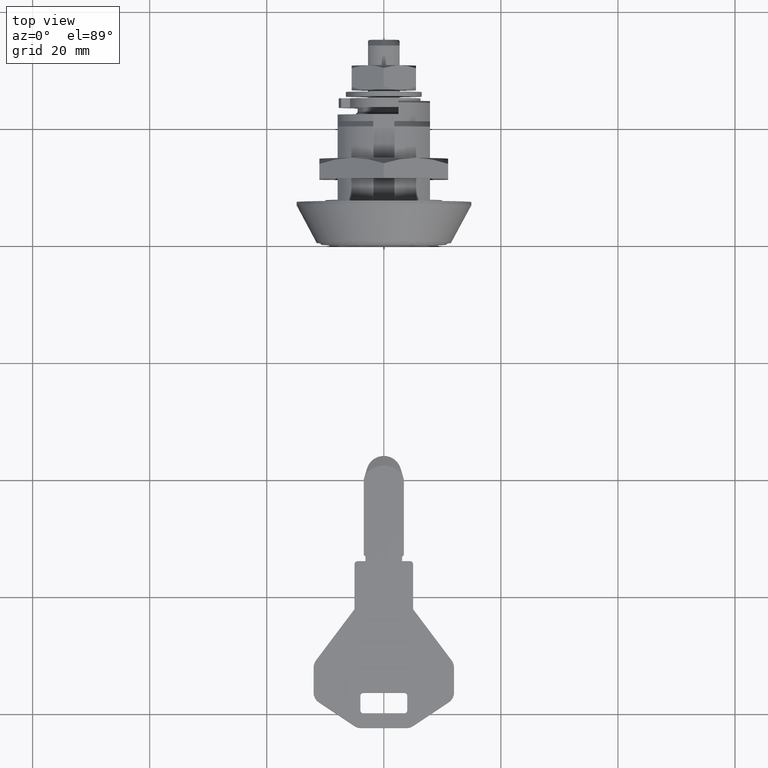
[diagram: clean part render]
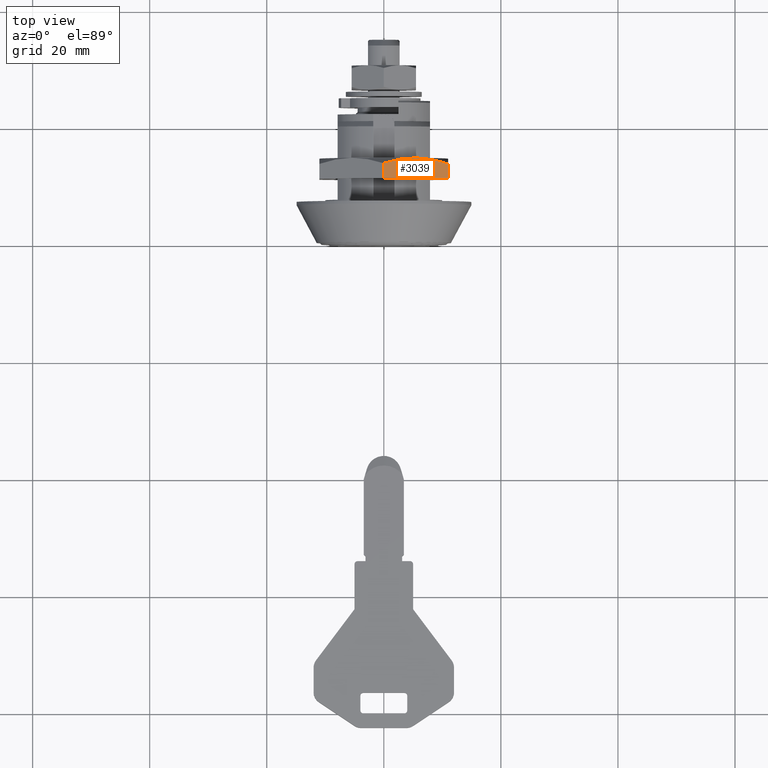
[diagram: same view with one face highlighted and labeled with its STEP entity id]
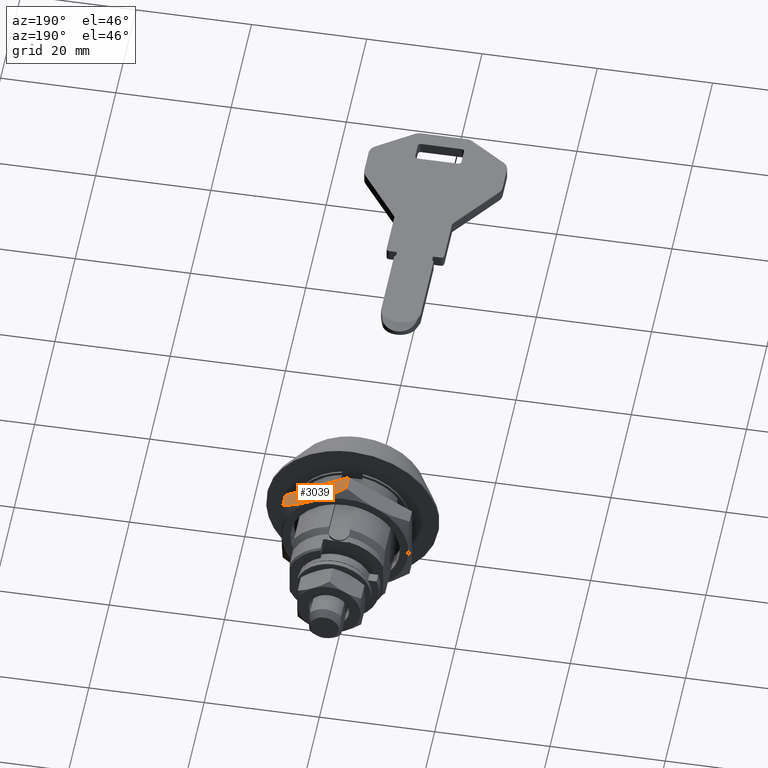
[diagram: same view with one face highlighted and labeled with its STEP entity id]
A machine part, top view. The second image highlights one B-rep face of the part: STEP entity #3039.
A second angle (auxiliary view) of the same face is appended — the face is thin or edge-on in the first view.
In plain terms, the highlighted face is a freeform B-spline surface patch.
Its self-contained STEP definition (entity closure, byte-faithful):
#2836=CARTESIAN_POINT('',(13.714456260781221,-11.0,6.350852499727981));
#2837=VERTEX_POINT('',#2836);
#2854=CARTESIAN_POINT('',(14.696936499999961,-5.499999833928370,9.526279095609480));
#2855=VERTEX_POINT('',#2854);
#2869=CARTESIAN_POINT('',(14.696936499999961,-5.499999833928370,9.526279095609480));
#2870=CARTESIAN_POINT('',(14.696935433367130,-5.730331061023577,9.393297298828506));
#2871=CARTESIAN_POINT('',(14.691325657526770,-5.961779285706518,9.259670603185572));
#2872=CARTESIAN_POINT('',(14.668892062982660,-6.426112151151324,8.991587896684772));
#2873=CARTESIAN_POINT('',(14.651925091422831,-6.659218344848695,8.857003972179175));
#2874=CARTESIAN_POINT('',(14.584763235977110,-7.356204282073581,8.454598951235315));
#2875=CARTESIAN_POINT('',(14.518269394289421,-7.817745928162263,8.188127755991017));
#2876=CARTESIAN_POINT('',(14.261506074273420,-9.194153750972216,7.393458324107734));
#2877=CARTESIAN_POINT('',(14.014177999452899,-10.100834830220130,6.869985755727289));
#2878=CARTESIAN_POINT('',(13.714456260781221,-11.0,6.350852499727981));
#2879=B_SPLINE_CURVE_WITH_KNOTS('',3,(#2869,#2870,#2871,#2872,#2873,#2874,#2875,#2876,#2877,#2878),.UNSPECIFIED.,.F.,.U.,(4,2,2,2,4),(0.500936479368760,0.562500000000000,0.625000000000000,0.750000000000000,1.0),.UNSPECIFIED.);
#2880=EDGE_CURVE('',#2855,#2837,#2879,.T.);
#2899=CARTESIAN_POINT('',(13.714456371495620,3.390762E-016,12.701705499728000));
#2900=VERTEX_POINT('',#2899);
#2914=CARTESIAN_POINT('',(13.714456371495620,3.390762E-016,12.701705499728000));
#2915=CARTESIAN_POINT('',(14.013804931793580,-0.898045675390268,12.183218584119929));
#2916=CARTESIAN_POINT('',(14.260522358966380,-1.802638777426168,11.660951509952289));
#2917=CARTESIAN_POINT('',(14.516860153271841,-3.173677726457229,10.869381798809490));
#2918=CARTESIAN_POINT('',(14.583304234576170,-3.633054580668442,10.604160446746050));
#2919=CARTESIAN_POINT('',(14.673187198829970,-4.557158228658785,10.070628953550550));
#2920=CARTESIAN_POINT('',(14.696588920718600,-5.021889645354152,9.802316143376551));
#2921=CARTESIAN_POINT('',(14.696935432152710,-5.492992681515370,9.530324676966222));
#2922=CARTESIAN_POINT('',(14.696936710782010,-5.496496128490555,9.528301960899613));
#2923=CARTESIAN_POINT('',(14.696936499999961,-5.499999833928370,9.526279095609480));
#2924=B_SPLINE_CURVE_WITH_KNOTS('',3,(#2914,#2915,#2916,#2917,#2918,#2919,#2920,#2921,#2922,#2923),.UNSPECIFIED.,.F.,.U.,(4,2,2,2,4),(0.0,0.250000000000000,0.375000000000000,0.500000000000000,0.500936479368760),.UNSPECIFIED.);
#2925=EDGE_CURVE('',#2900,#2855,#2924,.T.);
#2948=CARTESIAN_POINT('',(11.196936499999980,0.0,12.701705499728000));
#2949=VERTEX_POINT('',#2948);
#2978=CARTESIAN_POINT('',(11.196936499999980,-11.0,6.350852499728091));
#2979=VERTEX_POINT('',#2978);
#2985=CARTESIAN_POINT('',(11.196936499999980,-11.0,6.350852499728091));
#2986=CARTESIAN_POINT('',(11.196936499999980,0.0,12.701705499728000));
#2987=QUASI_UNIFORM_CURVE('',1,(#2985,#2986),.UNSPECIFIED.,.F.,.U.);
#2988=EDGE_CURVE('',#2979,#2949,#2987,.T.);
#3019=CARTESIAN_POINT('',(11.022111605350149,0.549450185200099,13.018930714003391));
#3020=CARTESIAN_POINT('',(11.022111605350149,-11.549450283547801,6.033627228671610));
#3021=CARTESIAN_POINT('',(14.871761582404419,0.549450185200099,13.018930714003391));
#3022=CARTESIAN_POINT('',(14.871761582404419,-11.549450283547801,6.033627228671610));
#3023=B_SPLINE_SURFACE_WITH_KNOTS('',1,1,((#3019,#3021),(#3020,#3022)),.UNSPECIFIED.,.F.,.F.,.U.,(2,2),(2,2),(0.0,13.970606906461020),(0.0,3.849649977054277),.UNSPECIFIED.);
#3024=ORIENTED_EDGE('',*,*,#2925,.F.);
#3025=CARTESIAN_POINT('',(13.714456371495620,3.390762E-016,12.701705499728000));
#3026=CARTESIAN_POINT('',(11.196936499999980,0.0,12.701705499728000));
#3027=QUASI_UNIFORM_CURVE('',1,(#3025,#3026),.UNSPECIFIED.,.F.,.U.);
#3028=EDGE_CURVE('',#2900,#2949,#3027,.T.);
#3029=ORIENTED_EDGE('',*,*,#3028,.T.);
#3030=ORIENTED_EDGE('',*,*,#2988,.F.);
#3031=CARTESIAN_POINT('',(13.714456260781221,-11.0,6.350852499727981));
#3032=CARTESIAN_POINT('',(11.196936499999980,-11.0,6.350852499728091));
#3033=QUASI_UNIFORM_CURVE('',1,(#3031,#3032),.UNSPECIFIED.,.F.,.U.);
#3034=EDGE_CURVE('',#2837,#2979,#3033,.T.);
#3035=ORIENTED_EDGE('',*,*,#3034,.F.);
#3036=ORIENTED_EDGE('',*,*,#2880,.F.);
#3037=EDGE_LOOP('',(#3024,#3029,#3030,#3035,#3036));
#3038=FACE_OUTER_BOUND('',#3037,.T.);
#3039=ADVANCED_FACE('',(#3038),#3023,.T.);